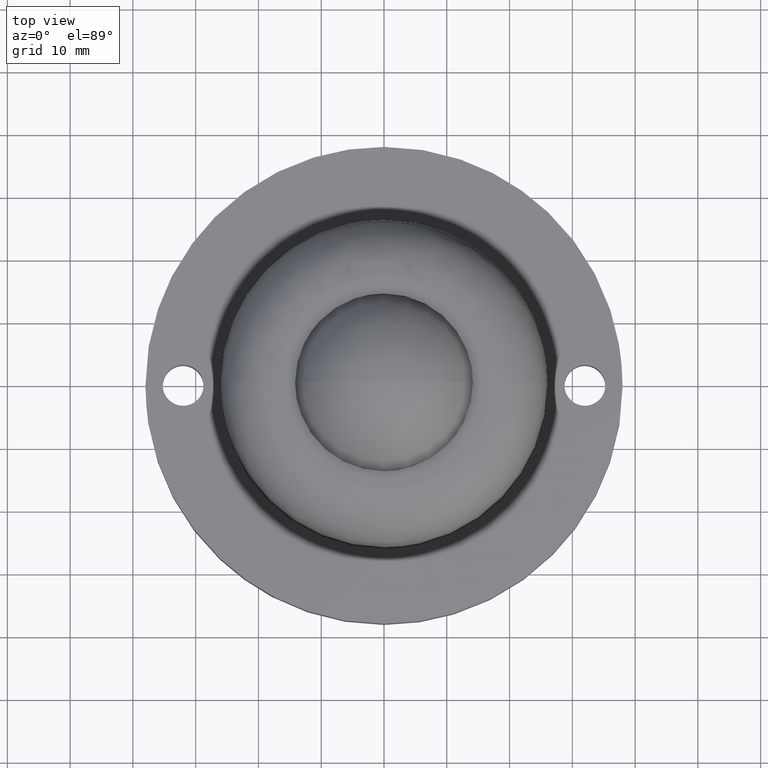
[diagram: clean part render]
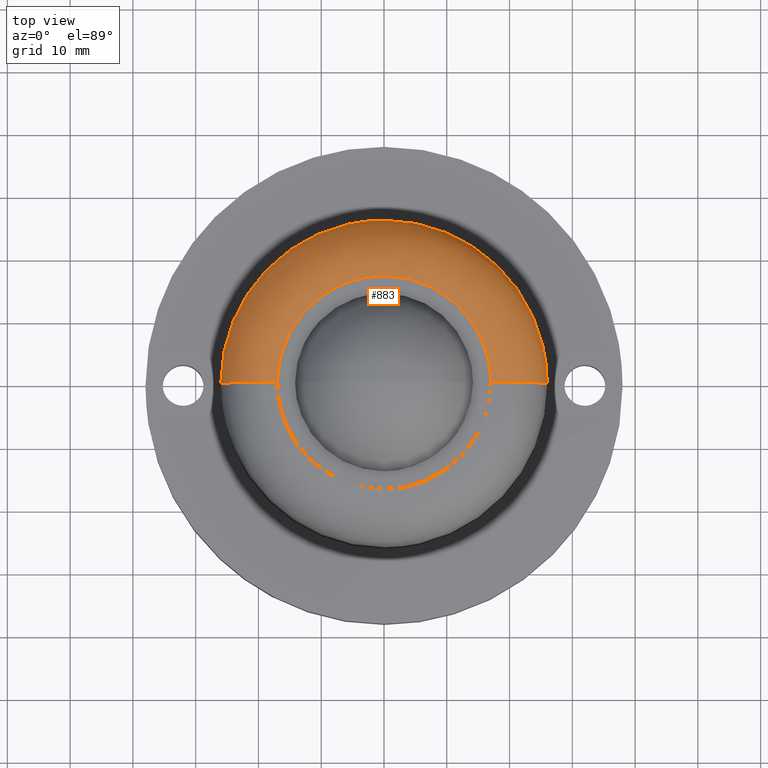
[diagram: same view with one face highlighted and labeled with its STEP entity id]
A machine part, top view. The second image highlights one B-rep face of the part: STEP entity #883.
In plain terms, the highlighted face is a freeform B-spline surface patch.
Its self-contained STEP definition (entity closure, byte-faithful):
#686=CARTESIAN_POINT('',(-17.000000000116270,-1.999253E-015,37.0));
#687=VERTEX_POINT('',#686);
#705=CARTESIAN_POINT('',(17.000000000116270,9.822633E-016,37.0));
#706=VERTEX_POINT('',#705);
#724=CARTESIAN_POINT('',(0.000000763991105,16.999999999999730,37.0));
#725=VERTEX_POINT('',#724);
#726=CARTESIAN_POINT('',(0.000000763991105,16.999999999999730,37.0));
#727=CARTESIAN_POINT('',(1.182199963579071,17.000203223595999,37.000000000000057));
#728=CARTESIAN_POINT('',(3.094478162469597,16.799666988811090,36.999999999999943));
#729=CARTESIAN_POINT('',(5.443084699039448,16.141904094861911,37.000000000000107));
#730=CARTESIAN_POINT('',(7.250706520579092,15.412583959067740,36.999999999999957));
#731=CARTESIAN_POINT('',(8.940441153172714,14.509412885344990,37.000000000000121));
#732=CARTESIAN_POINT('',(10.820221190457060,13.185562306060170,36.999999999999837));
#733=CARTESIAN_POINT('',(12.497231257097670,11.608403624688520,37.000000000000121));
#734=CARTESIAN_POINT('',(14.238723503310680,9.432637289820734,36.999999999999979));
#735=CARTESIAN_POINT('',(15.568249073294760,7.051882848929261,37.000000000000099));
#736=CARTESIAN_POINT('',(16.384663142369678,4.678063123532904,36.999999999999737));
#737=CARTESIAN_POINT('',(16.874192270215449,2.433881198001875,37.000000000000732));
#738=CARTESIAN_POINT('',(17.000086053148589,0.973565629497224,36.999999999999190));
#739=CARTESIAN_POINT('',(17.000000000116270,9.822633E-016,37.0));
#740=B_SPLINE_CURVE_WITH_KNOTS('',3,(#726,#727,#728,#729,#730,#731,#732,#733,#734,#735,#736,#737,#738,#739),.UNSPECIFIED.,.F.,.U.,(4,1,1,1,1,1,1,1,1,1,1,4),(0.000000060104107,3.546548817192043,5.737096583402600,7.301760944262359,9.387983519953295,11.474198681402131,14.186265424763580,16.272490780969161,19.819062137265149,22.322525669924939,23.782898333579141,26.703579015132849),.UNSPECIFIED.);
#741=EDGE_CURVE('',#725,#706,#740,.T.);
#743=CARTESIAN_POINT('',(-17.000000000116270,-1.999253E-015,37.0));
#744=CARTESIAN_POINT('',(-17.000099431178299,1.043111359037903,37.0));
#745=CARTESIAN_POINT('',(-16.839479887511661,2.781583677752773,37.000000000000050));
#746=CARTESIAN_POINT('',(-16.289240421439931,4.978038901693621,36.999999999999993));
#747=CARTESIAN_POINT('',(-15.615717997241161,6.807182158996977,37.000000000000078));
#748=CARTESIAN_POINT('',(-14.759375267742870,8.521538781132884,36.999999999999822));
#749=CARTESIAN_POINT('',(-13.507409174614549,10.407762697570281,37.000000000000362));
#750=CARTESIAN_POINT('',(-11.896063244945021,12.241453723919310,36.999999999999467));
#751=CARTESIAN_POINT('',(-10.125437757606750,13.712757645988839,37.000000000000462));
#752=CARTESIAN_POINT('',(-7.953597554467897,15.097544918525250,36.999999999999957));
#753=CARTESIAN_POINT('',(-5.688228525915607,16.110025142480950,37.000000000000092));
#754=CARTESIAN_POINT('',(-2.816353669113031,16.838635602145079,37.000000000000547));
#755=CARTESIAN_POINT('',(-1.008339597010314,17.000096781639218,36.999999999998998));
#756=CARTESIAN_POINT('',(0.000000763991105,16.999999999999730,37.0));
#757=B_SPLINE_CURVE_WITH_KNOTS('',3,(#743,#744,#745,#746,#747,#748,#749,#750,#751,#752,#753,#754,#755,#756),.UNSPECIFIED.,.F.,.U.,(4,1,1,1,1,1,1,1,1,1,1,4),(0.000000060014035,3.129318967975795,5.215541225445833,6.780206405705080,8.970749803612890,10.952647423046010,13.560383469263931,16.272491306209069,17.837156940332740,21.279417584656489,23.678567379039428,26.703579876330242),.UNSPECIFIED.);
#758=EDGE_CURVE('',#687,#725,#757,.T.);
#771=CARTESIAN_POINT('',(-16.375844820817829,-0.457815198138183,36.978331154078703));
#772=CARTESIAN_POINT('',(-16.375844820817832,-0.230240699616928,36.978331154078710));
#773=CARTESIAN_POINT('',(-16.375844820817839,16.375844820817822,36.978331154078710));
#774=CARTESIAN_POINT('',(-4.010793E-015,16.375844820817832,36.978331154078703));
#775=CARTESIAN_POINT('',(16.375844820817822,16.375844820817839,36.978331154078710));
#776=CARTESIAN_POINT('',(16.375844820817832,-0.230240699616922,36.978331154078710));
#777=CARTESIAN_POINT('',(16.375844820817829,-0.457815198138179,36.978331154078703));
#778=CARTESIAN_POINT('',(-26.699653447279481,-0.746435207889116,37.696021169350843));
#779=CARTESIAN_POINT('',(-26.699653447279474,-0.375391129831440,37.696021169350836));
#780=CARTESIAN_POINT('',(-26.699653447279474,26.699653447279474,37.696021169350828));
#781=CARTESIAN_POINT('',(-6.539313E-015,26.699653447279466,37.696021169350836));
#782=CARTESIAN_POINT('',(26.699653447279474,26.699653447279474,37.696021169350828));
#783=CARTESIAN_POINT('',(26.699653447279474,-0.375391129831431,37.696021169350836));
#784=CARTESIAN_POINT('',(26.699653447279477,-0.746435207889111,37.696021169350850));
#785=CARTESIAN_POINT('',(-25.978096750033071,-0.726262836574395,27.372482074327074));
#786=CARTESIAN_POINT('',(-25.978096750033075,-0.365246204753981,27.372482074327074));
#787=CARTESIAN_POINT('',(-25.978096750033068,25.978096750033068,27.372482074327067));
#788=CARTESIAN_POINT('',(-6.362588E-015,25.978096750033075,27.372482074327067));
#789=CARTESIAN_POINT('',(25.978096750033068,25.978096750033068,27.372482074327067));
#790=CARTESIAN_POINT('',(25.978096750033075,-0.365246204753972,27.372482074327074));
#791=CARTESIAN_POINT('',(25.978096750033082,-0.726262836574390,27.372482074327070));
#799=(BOUNDED_SURFACE()B_SPLINE_SURFACE(2,2,((#771,#778,#785),(#772,#779,#786),(#773,#780,#787),(#774,#781,#788),(#775,#782,#789),(#776,#783,#790),(#777,#784,#791)),.UNSPECIFIED.,.F.,.F.,.U.)B_SPLINE_SURFACE_WITH_KNOTS((3,1,2,1,3),(3,3),(0.0,0.860838399880331,43.902758393896832,86.944678387913328,87.805516787793650),(0.0,16.404544592973188),.UNSPECIFIED.)GEOMETRIC_REPRESENTATION_ITEM()RATIONAL_B_SPLINE_SURFACE(((0.926697838400259,0.606435486919036,0.921564728292852),(0.921332230155912,0.602924207283492,0.916228840909793),(0.647686209694202,0.423848945870745,0.644098584373797),(0.915966621911565,0.599412927647948,0.910892953526734),(0.647686209694202,0.423848945870745,0.644098584373797),(0.921332230155912,0.602924207283492,0.916228840909793),(0.926697838400259,0.606435486919036,0.921564728292852)))REPRESENTATION_ITEM('')SURFACE());
#800=CARTESIAN_POINT('',(-25.999999999999741,-2.009686E-015,28.000000000059298));
#801=VERTEX_POINT('',#800);
#802=CARTESIAN_POINT('',(-17.000000000116270,-1.999253E-015,37.0));
#803=CARTESIAN_POINT('',(-17.625873018148841,-2.451713E-015,37.000095090647250));
#804=CARTESIAN_POINT('',(-18.583024501186710,-3.071125E-015,36.899725530709702));
#805=CARTESIAN_POINT('',(-19.971266290663380,-3.803926E-015,36.524694079569912));
#806=CARTESIAN_POINT('',(-21.264592071152070,-4.345490E-015,35.979735909724347));
#807=CARTESIAN_POINT('',(-22.659988171429131,-4.698986E-015,35.071937378966290));
#808=CARTESIAN_POINT('',(-23.983888055417101,-4.723738E-015,33.780209586883700));
#809=CARTESIAN_POINT('',(-25.012835332804151,-4.356190E-015,32.240298206114588));
#810=CARTESIAN_POINT('',(-25.795767929252978,-3.509168E-015,30.282390014102280));
#811=CARTESIAN_POINT('',(-26.000348859119811,-2.621035E-015,28.846795809583639));
#812=CARTESIAN_POINT('',(-25.999999999999741,-2.009686E-015,28.000000000059298));
#813=B_SPLINE_CURVE_WITH_KNOTS('',3,(#802,#803,#804,#805,#806,#807,#808,#809,#810,#811,#812),.UNSPECIFIED.,.F.,.U.,(4,1,1,1,1,1,1,1,4),(0.000000042109791,1.877599280406029,2.871624140780124,4.307446377275330,6.074605069650701,7.841735933651200,9.829809876793858,11.596975866118900,14.137255645777801),.UNSPECIFIED.);
#814=EDGE_CURVE('',#687,#801,#813,.T.);
#815=ORIENTED_EDGE('',*,*,#814,.F.);
#816=ORIENTED_EDGE('',*,*,#758,.T.);
#817=ORIENTED_EDGE('',*,*,#741,.T.);
#818=CARTESIAN_POINT('',(25.999999999999869,2.586843E-016,28.000000000059298));
#819=VERTEX_POINT('',#818);
#820=CARTESIAN_POINT('',(17.000000000116270,9.822633E-016,37.0));
#821=CARTESIAN_POINT('',(17.625873009518578,1.150446E-015,37.000095421918232));
#822=CARTESIAN_POINT('',(18.583024202106682,1.372563E-015,36.899724871484352));
#823=CARTESIAN_POINT('',(19.971271721051640,1.614631E-015,36.524704057815690));
#824=CARTESIAN_POINT('',(20.992287722450570,1.738745E-015,36.094419112084189));
#825=CARTESIAN_POINT('',(22.106924084292132,1.811453E-015,35.444807298461022));
#826=CARTESIAN_POINT('',(23.039074806830730,1.807952E-015,34.717323879426473));
#827=CARTESIAN_POINT('',(24.107363506530639,1.703339E-015,33.595391045345622));
#828=CARTESIAN_POINT('',(25.012822255031899,1.473592E-015,32.240297586899288));
#829=CARTESIAN_POINT('',(25.795777387984810,1.000513E-015,30.282391712091950));
#830=CARTESIAN_POINT('',(26.000345719502679,5.543614E-016,28.846795347551119));
#831=CARTESIAN_POINT('',(25.999999999999869,2.586843E-016,28.000000000059298));
#832=B_SPLINE_CURVE_WITH_KNOTS('',3,(#820,#821,#822,#823,#824,#825,#826,#827,#828,#829,#830,#831),.UNSPECIFIED.,.F.,.U.,(4,1,1,1,1,1,1,1,1,4),(0.000000042103247,1.877599280399712,2.871624140773664,4.307446377268885,5.191027287405660,6.737319881447710,7.841735933646075,9.829809876790517,11.596975866117180,14.137255645778049),.UNSPECIFIED.);
#833=EDGE_CURVE('',#706,#819,#832,.T.);
#834=ORIENTED_EDGE('',*,*,#833,.T.);
#835=CARTESIAN_POINT('',(0.000000937669973,25.999999999999989,28.000000000059309));
#836=VERTEX_POINT('',#835);
#837=CARTESIAN_POINT('',(0.000000937669973,25.999999999999989,28.000000000059309));
#838=CARTESIAN_POINT('',(1.116731838581454,26.000038307459558,28.000000000059359));
#839=CARTESIAN_POINT('',(3.190662363063084,25.866175415473140,28.000000000059231));
#840=CARTESIAN_POINT('',(6.122777429157824,25.320239418650100,28.000000000059341));
#841=CARTESIAN_POINT('',(9.438153317876978,24.325789049965440,28.000000000059231));
#842=CARTESIAN_POINT('',(12.391489160519910,22.951106830883631,28.000000000059490));
#843=CARTESIAN_POINT('',(15.123812419064150,21.197066633421478,28.000000000059199));
#844=CARTESIAN_POINT('',(17.594791359900871,19.256688376360142,28.000000000059551));
#845=CARTESIAN_POINT('',(19.854209685661921,16.912471038126139,28.000000000059259));
#846=CARTESIAN_POINT('',(21.804230612578522,14.248997972610500,28.000000000059600));
#847=CARTESIAN_POINT('',(23.279258277494559,11.718222759035010,28.000000000059131));
#848=CARTESIAN_POINT('',(24.590282234290399,8.685587652240592,28.000000000059359));
#849=CARTESIAN_POINT('',(25.697306674493522,4.732756831449843,28.000000000059298));
#850=CARTESIAN_POINT('',(26.000254147343881,1.754892724440281,28.000000000059291));
#851=CARTESIAN_POINT('',(25.999999999999869,2.586843E-016,28.000000000059298));
#852=B_SPLINE_CURVE_WITH_KNOTS('',3,(#837,#838,#839,#840,#841,#842,#843,#844,#845,#846,#847,#848,#849,#850,#851),.UNSPECIFIED.,.F.,.U.,(4,1,1,1,1,1,1,1,1,1,1,1,4),(0.000000047674320,3.350191907100893,6.221835085393700,8.933913233815787,13.719946318923601,15.953448951479031,18.665541630265810,23.132461344884700,25.685012367445680,28.556622437393159,31.906851596545891,35.576139713462581,40.840768035391463),.UNSPECIFIED.);
#853=EDGE_CURVE('',#836,#819,#852,.T.);
#854=ORIENTED_EDGE('',*,*,#853,.F.);
#855=CARTESIAN_POINT('',(-18.859733453716679,17.897218830917581,28.000000000059298));
#856=VERTEX_POINT('',#855);
#857=CARTESIAN_POINT('',(-18.859733453716679,17.897218830917581,28.000000000059298));
#858=CARTESIAN_POINT('',(-17.914146629002040,18.893760551052061,28.000000000059309));
#859=CARTESIAN_POINT('',(-15.741575603417051,20.847074211159882,28.000000000059281));
#860=CARTESIAN_POINT('',(-12.338760054853211,23.000957148224408,28.000000000059401));
#861=CARTESIAN_POINT('',(-9.109827623570192,24.412374187844971,28.000000000059199));
#862=CARTESIAN_POINT('',(-6.480016366149377,25.220098085392049,28.000000000059579));
#863=CARTESIAN_POINT('',(-3.516811772507479,25.829735072317071,28.000000000059138));
#864=CARTESIAN_POINT('',(-1.373770175159848,26.000094025114130,28.000000000059330));
#865=CARTESIAN_POINT('',(0.000000937669973,25.999999999999989,28.000000000059309));
#866=B_SPLINE_CURVE_WITH_KNOTS('',3,(#857,#858,#859,#860,#861,#862,#863,#864,#865),.UNSPECIFIED.,.F.,.U.,(4,1,1,1,1,1,4),(0.000000013962651,4.121299564113112,8.737175196929675,12.034197280062610,14.671832962666180,16.979767260915470,21.101066811068879),.UNSPECIFIED.);
#867=EDGE_CURVE('',#856,#836,#866,.T.);
#868=ORIENTED_EDGE('',*,*,#867,.F.);
#869=CARTESIAN_POINT('',(-25.999999999999741,-2.009686E-015,28.000000000059298));
#870=CARTESIAN_POINT('',(-26.000051954629740,1.182324254518316,28.000000000059320));
#871=CARTESIAN_POINT('',(-25.855979428018330,3.289934905158254,28.000000000059281));
#872=CARTESIAN_POINT('',(-25.273243311875351,6.323189175135181,28.000000000059330));
#873=CARTESIAN_POINT('',(-24.376884216210410,9.225670944524639,28.000000000059281));
#874=CARTESIAN_POINT('',(-22.966008279671708,12.375643389097940,28.000000000059281));
#875=CARTESIAN_POINT('',(-21.093327038164819,15.339568555392930,28.000000000059480));
#876=CARTESIAN_POINT('',(-19.567443333481361,17.151467193017290,28.000000000059242));
#877=CARTESIAN_POINT('',(-18.859733453716679,17.897218830917581,28.000000000059298));
#878=B_SPLINE_CURVE_WITH_KNOTS('',3,(#869,#870,#871,#872,#873,#874,#875,#876,#877),.UNSPECIFIED.,.F.,.U.,(4,1,1,1,1,1,4),(0.000000012727657,3.546971912563091,6.322879466614101,9.252992969258049,12.645745639215409,16.655381712799429,19.739702720165660),.UNSPECIFIED.);
#879=EDGE_CURVE('',#801,#856,#878,.T.);
#880=ORIENTED_EDGE('',*,*,#879,.F.);
#881=EDGE_LOOP('',(#815,#816,#817,#834,#854,#868,#880));
#882=FACE_OUTER_BOUND('',#881,.T.);
#883=ADVANCED_FACE('',(#882),#799,.T.);